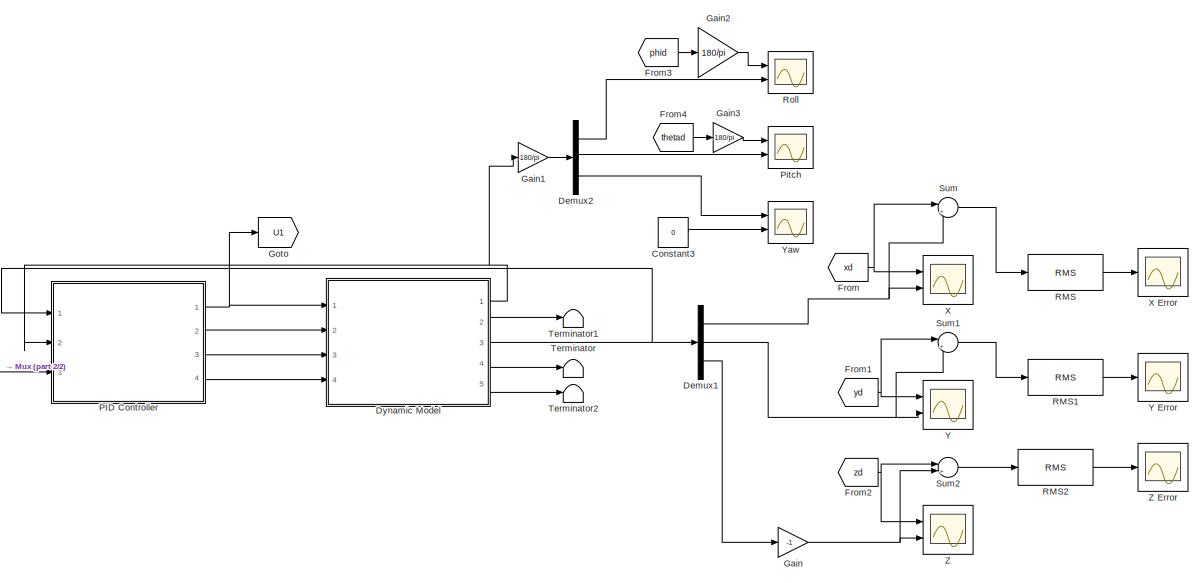
[diagram: root canvas - part 1/2, center side, full height]
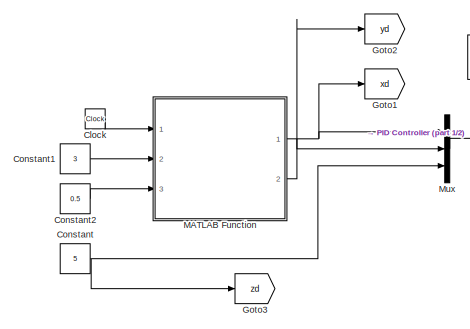
[diagram: root canvas - part 2/2, bottom left region]
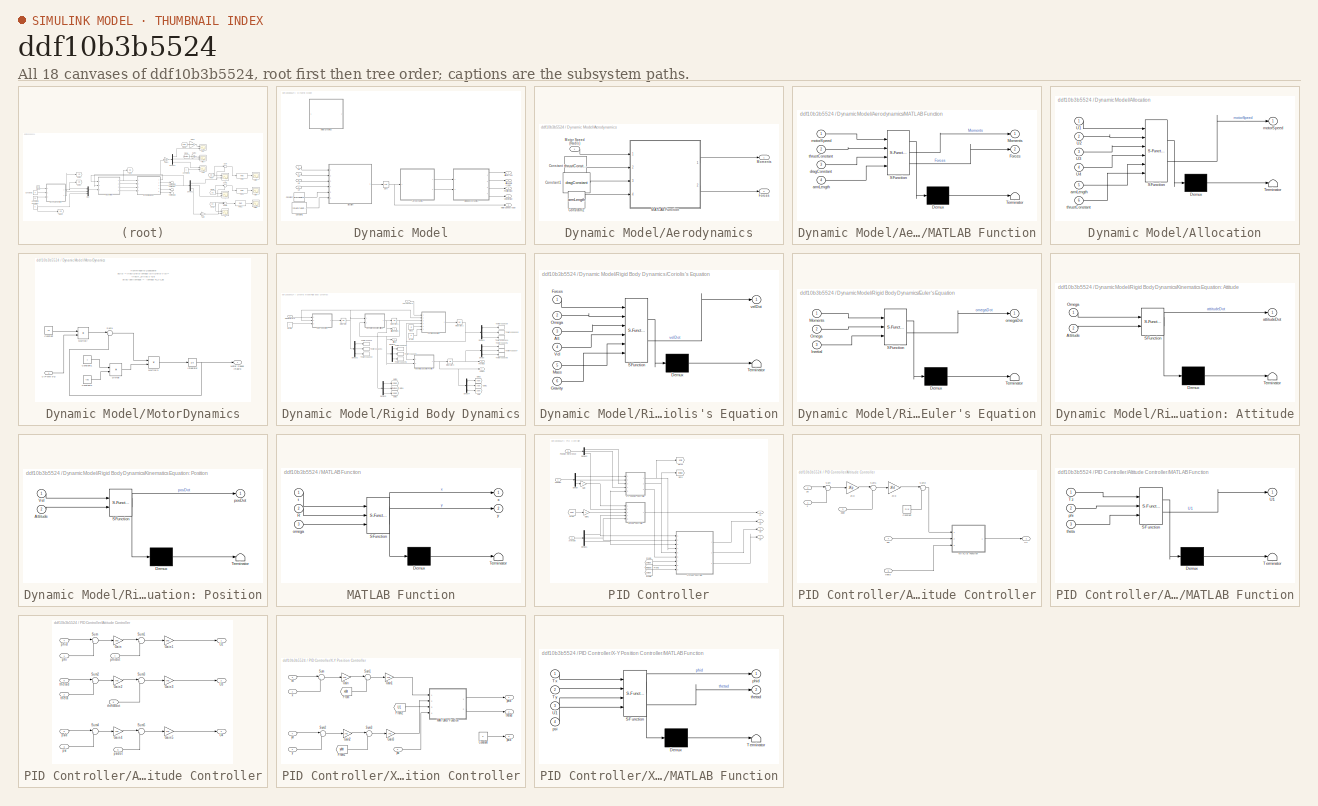
[diagram: thumbnail index - all 18 canvases of the model, root first then tree order]
MODEL slx_ddf10b3b5524
KIND model
CONFIG AbsTol = auto
CONFIG EnableMultiTasking = off
CONFIG FixedStep = auto
CONFIG MaxStep = auto
CONFIG MinStep = auto
CONFIG RelTol = 1e-3
CONFIG SampleTimeConstraint = Unconstrained
CONFIG SolverName = VariableStepAuto
CONFIG StartTime = 0.0
CONFIG StopTime = 20
BLOCK [Clock] Clock
BLOCK [Constant] Constant
  Value = 5
BLOCK [Constant] Constant1
  Value = 3
BLOCK [Constant] Constant2
  Value = 0.5
BLOCK [Constant] Constant3
  Value = 0
BLOCK [Demux] Demux1
  Outputs = 3
  Ports = [1, 3]
BLOCK [Demux] Demux2
  Outputs = 3
  Ports = [1, 3]
BLOCK [SubSystem] Dynamic Model
  Ports = [4, 5]
  RequestExecContextInheritance = off
BLOCK [SubSystem] Dynamic Model/Aerodynamics
  Ports = [1, 2]
  RequestExecContextInheritance = off
BLOCK [Constant] Dynamic Model/Aerodynamics/Constant
  Value = thrustConstant
BLOCK [Constant] Dynamic Model/Aerodynamics/Constant1
  Value = dragConstant
BLOCK [Constant] Dynamic Model/Aerodynamics/Constant2
  Value = armLength
BLOCK [Outport] Dynamic Model/Aerodynamics/Forces
  Port = 2
BLOCK [SubSystem] Dynamic Model/Aerodynamics/MATLAB Function
  ErrorFcn = Stateflow.Translate.translate
  PermitHierarchicalResolution = ExplicitOnly
  Ports = [4, 2]
  RequestExecContextInheritance = off
  SFBlockType = MATLAB Function
  TreatAsAtomicUnit = on
BLOCK [Demux] Dynamic Model/Aerodynamics/MATLAB Function/ Demux 
  Outputs = 1
  Ports = [1, 1]
BLOCK [S-Function] Dynamic Model/Aerodynamics/MATLAB Function/ SFunction 
  EnableBusSupport = on
  FunctionName = sf_sfun
  PortCounts = [4 3]
  Ports = [4, 3]
  SFcnIsStateOwnerBlock = off
  SFunctionDeploymentMode = off
  Tag = Stateflow S-Function 5
BLOCK [Terminator] Dynamic Model/Aerodynamics/MATLAB Function/ Terminator 
BLOCK [Outport] Dynamic Model/Aerodynamics/MATLAB Function/Forces
  Port = 2
BLOCK [Outport] Dynamic Model/Aerodynamics/MATLAB Function/Moments
BLOCK [Inport] Dynamic Model/Aerodynamics/MATLAB Function/armLength
  Port = 4
BLOCK [Inport] Dynamic Model/Aerodynamics/MATLAB Function/dragConstant
  Port = 3
BLOCK [Inport] Dynamic Model/Aerodynamics/MATLAB Function/motorSpeed
BLOCK [Inport] Dynamic Model/Aerodynamics/MATLAB Function/thrustConstant
  Port = 2
BLOCK [Outport] Dynamic Model/Aerodynamics/Moments
BLOCK [Inport] Dynamic Model/Aerodynamics/Motor Speed (Rad//s)
BLOCK [SubSystem] Dynamic Model/Allocation
  ErrorFcn = Stateflow.Translate.translate
  PermitHierarchicalResolution = ExplicitOnly
  Ports = [6, 1]
  RequestExecContextInheritance = off
  SFBlockType = MATLAB Function
  TreatAsAtomicUnit = on
BLOCK [Demux] Dynamic Model/Allocation/ Demux 
  Outputs = 1
  Ports = [1, 1]
BLOCK [S-Function] Dynamic Model/Allocation/ SFunction 
  EnableBusSupport = on
  FunctionName = sf_sfun
  PortCounts = [6 2]
  Ports = [6, 2]
  SFcnIsStateOwnerBlock = off
  SFunctionDeploymentMode = off
  Tag = Stateflow S-Function 13
BLOCK [Terminator] Dynamic Model/Allocation/ Terminator 
BLOCK [Inport] Dynamic Model/Allocation/U1
BLOCK [Inport] Dynamic Model/Allocation/U2
  Port = 2
BLOCK [Inport] Dynamic Model/Allocation/U3
  Port = 3
BLOCK [Inport] Dynamic Model/Allocation/U4
  Port = 4
BLOCK [Inport] Dynamic Model/Allocation/armLength
  Port = 5
BLOCK [Outport] Dynamic Model/Allocation/motorSpeed
BLOCK [Inport] Dynamic Model/Allocation/thrustConstant
  Port = 6
BLOCK [Outport] Dynamic Model/Attitude (rad)
BLOCK [Outport] Dynamic Model/Attitude Rate (rad//s)
  Port = 2
BLOCK [Constant] Dynamic Model/Constant
  Value = armLength
BLOCK [Constant] Dynamic Model/Constant1
  Value = thrustConstant
BLOCK [SubSystem] Dynamic Model/MotorDynamics
  Ports = [1, 1]
  RequestExecContextInheritance = off
BLOCK [Constant] Dynamic Model/MotorDynamics/Constant
  Value = ks
BLOCK [Constant] Dynamic Model/MotorDynamics/Constant1
BLOCK [Constant] Dynamic Model/MotorDynamics/Constant2
  Value = tau
BLOCK [Product] Dynamic Model/MotorDynamics/Divide
  Inputs = */
  Ports = [2, 1]
BLOCK [Integrator] Dynamic Model/MotorDynamics/Integrator
  InitialCondition = MotorSpeedInit
  Ports = [1, 1]
BLOCK [Outport] Dynamic Model/MotorDynamics/Motor Speed (Rad//s)
BLOCK [Product] Dynamic Model/MotorDynamics/Multiply
  Ports = [2, 1]
BLOCK [Product] Dynamic Model/MotorDynamics/Multiply1
  Ports = [2, 1]
BLOCK [Sum] Dynamic Model/MotorDynamics/Sum1
  Inputs = |+-
  Ports = [2, 1]
BLOCK [Inport] Dynamic Model/MotorDynamics/u (PWM 0~1)
BLOCK [Outport] Dynamic Model/MotorSpeed (rad//s)
  Port = 5
BLOCK [Outport] Dynamic Model/Position NED
  Port = 3
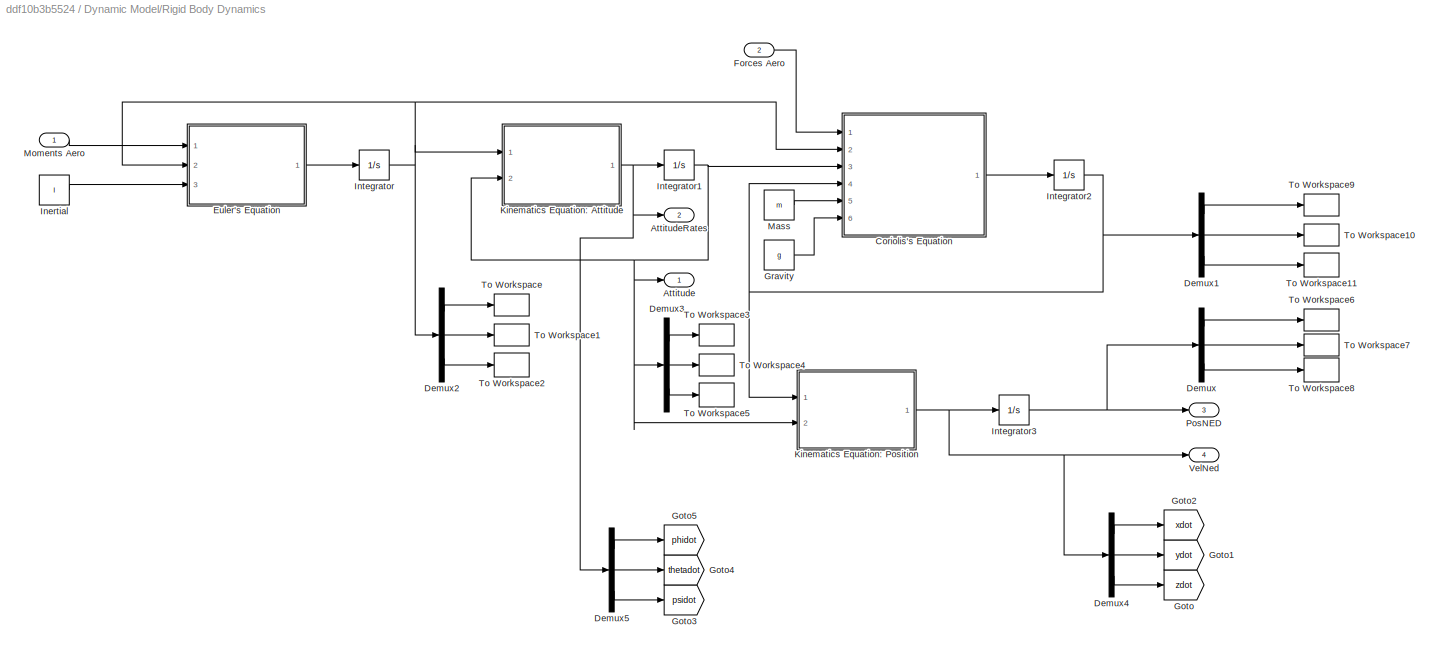
BLOCK [SubSystem] Dynamic Model/Rigid Body Dynamics
  Ports = [2, 4]
  RequestExecContextInheritance = off
BLOCK [Outport] Dynamic Model/Rigid Body Dynamics/Attitude
BLOCK [Outport] Dynamic Model/Rigid Body Dynamics/AttitudeRates
  Port = 2
BLOCK [SubSystem] Dynamic Model/Rigid Body Dynamics/Coriolis's Equation
  ErrorFcn = Stateflow.Translate.translate
  PermitHierarchicalResolution = ExplicitOnly
  Ports = [6, 1]
  RequestExecContextInheritance = off
  SFBlockType = MATLAB Function
  TreatAsAtomicUnit = on
BLOCK [Demux] Dynamic Model/Rigid Body Dynamics/Coriolis's Equation/ Demux 
  Outputs = 1
  Ports = [1, 1]
BLOCK [S-Function] Dynamic Model/Rigid Body Dynamics/Coriolis's Equation/ SFunction 
  EnableBusSupport = on
  FunctionName = sf_sfun
  PortCounts = [6 2]
  Ports = [6, 2]
  SFcnIsStateOwnerBlock = off
  SFunctionDeploymentMode = off
  Tag = Stateflow S-Function 3
BLOCK [Terminator] Dynamic Model/Rigid Body Dynamics/Coriolis's Equation/ Terminator 
BLOCK [Inport] Dynamic Model/Rigid Body Dynamics/Coriolis's Equation/Att
  Port = 3
BLOCK [Inport] Dynamic Model/Rigid Body Dynamics/Coriolis's Equation/Forces
BLOCK [Inport] Dynamic Model/Rigid Body Dynamics/Coriolis's Equation/Gravity
  Port = 6
BLOCK [Inport] Dynamic Model/Rigid Body Dynamics/Coriolis's Equation/Mass
  Port = 5
BLOCK [Inport] Dynamic Model/Rigid Body Dynamics/Coriolis's Equation/Omega
  Port = 2
BLOCK [Inport] Dynamic Model/Rigid Body Dynamics/Coriolis's Equation/Vel
  Port = 4
BLOCK [Outport] Dynamic Model/Rigid Body Dynamics/Coriolis's Equation/velDot
BLOCK [Demux] Dynamic Model/Rigid Body Dynamics/Demux
  Outputs = 3
  Ports = [1, 3]
BLOCK [Demux] Dynamic Model/Rigid Body Dynamics/Demux1
  Outputs = 3
  Ports = [1, 3]
BLOCK [Demux] Dynamic Model/Rigid Body Dynamics/Demux2
  Outputs = 3
  Ports = [1, 3]
BLOCK [Demux] Dynamic Model/Rigid Body Dynamics/Demux3
  Outputs = 3
  Ports = [1, 3]
BLOCK [Demux] Dynamic Model/Rigid Body Dynamics/Demux4
  Outputs = 3
  Ports = [1, 3]
BLOCK [Demux] Dynamic Model/Rigid Body Dynamics/Demux5
  Outputs = 3
  Ports = [1, 3]
BLOCK [SubSystem] Dynamic Model/Rigid Body Dynamics/Euler's Equation
  ErrorFcn = Stateflow.Translate.translate
  PermitHierarchicalResolution = ExplicitOnly
  Ports = [3, 1]
  RequestExecContextInheritance = off
  SFBlockType = MATLAB Function
  TreatAsAtomicUnit = on
BLOCK [Demux] Dynamic Model/Rigid Body Dynamics/Euler's Equation/ Demux 
  Outputs = 1
  Ports = [1, 1]
BLOCK [S-Function] Dynamic Model/Rigid Body Dynamics/Euler's Equation/ SFunction 
  EnableBusSupport = on
  FunctionName = sf_sfun
  PortCounts = [3 2]
  Ports = [3, 2]
  SFcnIsStateOwnerBlock = off
  SFunctionDeploymentMode = off
  Tag = Stateflow S-Function 2
BLOCK [Terminator] Dynamic Model/Rigid Body Dynamics/Euler's Equation/ Terminator 
BLOCK [Inport] Dynamic Model/Rigid Body Dynamics/Euler's Equation/Inertial
  Port = 3
BLOCK [Inport] Dynamic Model/Rigid Body Dynamics/Euler's Equation/Moments
BLOCK [Inport] Dynamic Model/Rigid Body Dynamics/Euler's Equation/Omega
  Port = 2
BLOCK [Outport] Dynamic Model/Rigid Body Dynamics/Euler's Equation/omegaDot
BLOCK [Inport] Dynamic Model/Rigid Body Dynamics/Forces Aero
  Port = 2
BLOCK [Goto] Dynamic Model/Rigid Body Dynamics/Goto
  GotoTag = zdot
  TagVisibility = global
BLOCK [Goto] Dynamic Model/Rigid Body Dynamics/Goto1
  GotoTag = ydot
  TagVisibility = global
BLOCK [Goto] Dynamic Model/Rigid Body Dynamics/Goto2
  GotoTag = xdot
  TagVisibility = global
BLOCK [Goto] Dynamic Model/Rigid Body Dynamics/Goto3
  GotoTag = psidot
  TagVisibility = global
BLOCK [Goto] Dynamic Model/Rigid Body Dynamics/Goto4
  GotoTag = thetadot
  TagVisibility = global
BLOCK [Goto] Dynamic Model/Rigid Body Dynamics/Goto5
  GotoTag = phidot
  TagVisibility = global
BLOCK [Constant] Dynamic Model/Rigid Body Dynamics/Gravity
  Value = g
BLOCK [Constant] Dynamic Model/Rigid Body Dynamics/Inertial
  Value = I
BLOCK [Integrator] Dynamic Model/Rigid Body Dynamics/Integrator
  InitialCondition = omegaInit
  Ports = [1, 1]
BLOCK [Integrator] Dynamic Model/Rigid Body Dynamics/Integrator1
  InitialCondition = attitudeInit
  Ports = [1, 1]
BLOCK [Integrator] Dynamic Model/Rigid Body Dynamics/Integrator2
  InitialCondition = velInit
  Ports = [1, 1]
BLOCK [Integrator] Dynamic Model/Rigid Body Dynamics/Integrator3
  InitialCondition = posInit
  Ports = [1, 1]
BLOCK [SubSystem] Dynamic Model/Rigid Body Dynamics/Kinematics Equation: Attitude
  ErrorFcn = Stateflow.Translate.translate
  PermitHierarchicalResolution = ExplicitOnly
  Ports = [2, 1]
  RequestExecContextInheritance = off
  SFBlockType = MATLAB Function
  TreatAsAtomicUnit = on
BLOCK [Demux] Dynamic Model/Rigid Body Dynamics/Kinematics Equation: Attitude/ Demux 
  Outputs = 1
  Ports = [1, 1]
BLOCK [S-Function] Dynamic Model/Rigid Body Dynamics/Kinematics Equation: Attitude/ SFunction 
  EnableBusSupport = on
  FunctionName = sf_sfun
  PortCounts = [2 2]
  Ports = [2, 2]
  SFcnIsStateOwnerBlock = off
  SFunctionDeploymentMode = off
  Tag = Stateflow S-Function 1
BLOCK [Terminator] Dynamic Model/Rigid Body Dynamics/Kinematics Equation: Attitude/ Terminator 
BLOCK [Inport] Dynamic Model/Rigid Body Dynamics/Kinematics Equation: Attitude/Attitude
  Port = 2
BLOCK [Inport] Dynamic Model/Rigid Body Dynamics/Kinematics Equation: Attitude/Omega
BLOCK [Outport] Dynamic Model/Rigid Body Dynamics/Kinematics Equation: Attitude/attitudeDot
BLOCK [SubSystem] Dynamic Model/Rigid Body Dynamics/Kinematics Equation: Position
  ErrorFcn = Stateflow.Translate.translate
  PermitHierarchicalResolution = ExplicitOnly
  Ports = [2, 1]
  RequestExecContextInheritance = off
  SFBlockType = MATLAB Function
  TreatAsAtomicUnit = on
BLOCK [Demux] Dynamic Model/Rigid Body Dynamics/Kinematics Equation: Position/ Demux 
  Outputs = 1
  Ports = [1, 1]
BLOCK [S-Function] Dynamic Model/Rigid Body Dynamics/Kinematics Equation: Position/ SFunction 
  EnableBusSupport = on
  FunctionName = sf_sfun
  PortCounts = [2 2]
  Ports = [2, 2]
  SFcnIsStateOwnerBlock = off
  SFunctionDeploymentMode = off
  Tag = Stateflow S-Function 4
BLOCK [Terminator] Dynamic Model/Rigid Body Dynamics/Kinematics Equation: Position/ Terminator 
BLOCK [Inport] Dynamic Model/Rigid Body Dynamics/Kinematics Equation: Position/Attitude
  Port = 2
BLOCK [Inport] Dynamic Model/Rigid Body Dynamics/Kinematics Equation: Position/Vel
BLOCK [Outport] Dynamic Model/Rigid Body Dynamics/Kinematics Equation: Position/posDot
BLOCK [Constant] Dynamic Model/Rigid Body Dynamics/Mass
  Value = m
BLOCK [Inport] Dynamic Model/Rigid Body Dynamics/Moments Aero
BLOCK [Outport] Dynamic Model/Rigid Body Dynamics/PosNED
  Port = 3
BLOCK [ToWorkspace] Dynamic Model/Rigid Body Dynamics/To Workspace
  MaxDataPoints = inf
  Ports = [1]
  SampleTime = -1
  Save2DSignal = 2-D array (concatenate along first dimension)
  VariableName = p
BLOCK [ToWorkspace] Dynamic Model/Rigid Body Dynamics/To Workspace1
  MaxDataPoints = inf
  Ports = [1]
  SampleTime = -1
  Save2DSignal = 2-D array (concatenate along first dimension)
  VariableName = q
BLOCK [ToWorkspace] Dynamic Model/Rigid Body Dynamics/To Workspace10
  MaxDataPoints = inf
  Ports = [1]
  SampleTime = -1
  Save2DSignal = 2-D array (concatenate along first dimension)
  VariableName = v
BLOCK [ToWorkspace] Dynamic Model/Rigid Body Dynamics/To Workspace11
  MaxDataPoints = inf
  Ports = [1]
  SampleTime = -1
  Save2DSignal = 2-D array (concatenate along first dimension)
  VariableName = w
BLOCK [ToWorkspace] Dynamic Model/Rigid Body Dynamics/To Workspace2
  MaxDataPoints = inf
  Ports = [1]
  SampleTime = -1
  Save2DSignal = 2-D array (concatenate along first dimension)
  VariableName = r
BLOCK [ToWorkspace] Dynamic Model/Rigid Body Dynamics/To Workspace3
  MaxDataPoints = inf
  Ports = [1]
  SampleTime = -1
  Save2DSignal = 2-D array (concatenate along first dimension)
  VariableName = roll
BLOCK [ToWorkspace] Dynamic Model/Rigid Body Dynamics/To Workspace4
  MaxDataPoints = inf
  Ports = [1]
  SampleTime = -1
  Save2DSignal = 2-D array (concatenate along first dimension)
  VariableName = pitch
BLOCK [ToWorkspace] Dynamic Model/Rigid Body Dynamics/To Workspace5
  MaxDataPoints = inf
  Ports = [1]
  SampleTime = -1
  Save2DSignal = 2-D array (concatenate along first dimension)
  VariableName = yaw
BLOCK [ToWorkspace] Dynamic Model/Rigid Body Dynamics/To Workspace6
  MaxDataPoints = inf
  Ports = [1]
  SampleTime = -1
  Save2DSignal = 2-D array (concatenate along first dimension)
  VariableName = x
BLOCK [ToWorkspace] Dynamic Model/Rigid Body Dynamics/To Workspace7
  MaxDataPoints = inf
  Ports = [1]
  SampleTime = -1
  Save2DSignal = 2-D array (concatenate along first dimension)
  VariableName = y
BLOCK [ToWorkspace] Dynamic Model/Rigid Body Dynamics/To Workspace8
  MaxDataPoints = inf
  Ports = [1]
  SampleTime = -1
  Save2DSignal = 2-D array (concatenate along first dimension)
  VariableName = z
BLOCK [ToWorkspace] Dynamic Model/Rigid Body Dynamics/To Workspace9
  MaxDataPoints = inf
  Ports = [1]
  SampleTime = -1
  Save2DSignal = 2-D array (concatenate along first dimension)
  VariableName = u
BLOCK [Outport] Dynamic Model/Rigid Body Dynamics/VelNed
  Port = 4
BLOCK [Sqrt] Dynamic Model/Sqrt
BLOCK [Inport] Dynamic Model/U1
BLOCK [Inport] Dynamic Model/U2
  Port = 2
BLOCK [Inport] Dynamic Model/U3
  Port = 3
BLOCK [Inport] Dynamic Model/U4
  Port = 4
BLOCK [Outport] Dynamic Model/Velocity NED
  Port = 4
BLOCK [From] From
  GotoTag = xd
BLOCK [From] From1
  GotoTag = yd
BLOCK [From] From2
  GotoTag = zd
BLOCK [From] From3
  GotoTag = phid
  TagVisibility = global
BLOCK [From] From4
  GotoTag = thetad
  TagVisibility = global
BLOCK [Gain] Gain
  Gain = -1
BLOCK [Gain] Gain1
  Gain = 180/pi
BLOCK [Gain] Gain2
  Gain = 180/pi
BLOCK [Gain] Gain3
  Gain = 180/pi
BLOCK [Goto] Goto
  GotoTag = U1
  TagVisibility = global
BLOCK [Goto] Goto1
  GotoTag = xd
BLOCK [Goto] Goto2
  GotoTag = yd
BLOCK [Goto] Goto3
  GotoTag = zd
BLOCK [SubSystem] MATLAB Function
  ErrorFcn = Stateflow.Translate.translate
  PermitHierarchicalResolution = ExplicitOnly
  Ports = [3, 2]
  RequestExecContextInheritance = off
  SFBlockType = MATLAB Function
  TreatAsAtomicUnit = on
BLOCK [Demux] MATLAB Function/ Demux 
  Outputs = 1
  Ports = [1, 1]
BLOCK [S-Function] MATLAB Function/ SFunction 
  EnableBusSupport = on
  FunctionName = sf_sfun
  PortCounts = [3 3]
  Ports = [3, 3]
  SFcnIsStateOwnerBlock = off
  SFunctionDeploymentMode = off
  Tag = Stateflow S-Function 11
BLOCK [Terminator] MATLAB Function/ Terminator 
BLOCK [Inport] MATLAB Function/R
  Port = 2
BLOCK [Inport] MATLAB Function/omega
  Port = 3
BLOCK [Inport] MATLAB Function/t
BLOCK [Outport] MATLAB Function/x
BLOCK [Outport] MATLAB Function/y
  Port = 2
BLOCK [Mux] Mux
  DisplayOption = bar
  Inputs = 3
  Ports = [3, 1]
BLOCK [SubSystem] PID Controller
  Ports = [3, 4]
  RequestExecContextInheritance = off
BLOCK [SubSystem] PID Controller/Altitude Controller
  Ports = [5, 1]
  RequestExecContextInheritance = off
BLOCK [Constant] PID Controller/Altitude Controller/Constant
  Value = m*g
BLOCK [SubSystem] PID Controller/Altitude Controller/MATLAB Function
  ErrorFcn = Stateflow.Translate.translate
  PermitHierarchicalResolution = ExplicitOnly
  Ports = [3, 1]
  RequestExecContextInheritance = off
  SFBlockType = MATLAB Function
  TreatAsAtomicUnit = on
BLOCK [Demux] PID Controller/Altitude Controller/MATLAB Function/ Demux 
  Outputs = 1
  Ports = [1, 1]
BLOCK [S-Function] PID Controller/Altitude Controller/MATLAB Function/ SFunction 
  EnableBusSupport = on
  FunctionName = sf_sfun
  PortCounts = [3 2]
  Ports = [3, 2]
  SFcnIsStateOwnerBlock = off
  SFunctionDeploymentMode = off
  Tag = Stateflow S-Function 12
BLOCK [Terminator] PID Controller/Altitude Controller/MATLAB Function/ Terminator 
BLOCK [Inport] PID Controller/Altitude Controller/MATLAB Function/Tz
BLOCK [Outport] PID Controller/Altitude Controller/MATLAB Function/U1
BLOCK [Inport] PID Controller/Altitude Controller/MATLAB Function/phi
  Port = 2
BLOCK [Inport] PID Controller/Altitude Controller/MATLAB Function/theta
  Port = 3
BLOCK [Sum] PID Controller/Altitude Controller/Sum
  Inputs = |+-
  Ports = [2, 1]
BLOCK [Sum] PID Controller/Altitude Controller/Sum1
  Inputs = |+-
  Ports = [2, 1]
BLOCK [Sum] PID Controller/Altitude Controller/Sum2
  Inputs = |++
  Ports = [2, 1]
BLOCK [Outport] PID Controller/Altitude Controller/U1
BLOCK [Inport] PID Controller/Altitude Controller/phi
  Port = 4
BLOCK [Inport] PID Controller/Altitude Controller/theta
  Port = 5
BLOCK [Inport] PID Controller/Altitude Controller/z
BLOCK [Gain] PID Controller/Altitude Controller/zKd
  Gain = zKd
BLOCK [Gain] PID Controller/Altitude Controller/zKp
  Gain = zKp
BLOCK [Inport] PID Controller/Altitude Controller/zd
  Port = 2
BLOCK [Inport] PID Controller/Altitude Controller/zdot
  Port = 3
BLOCK [Inport] PID Controller/Attitude
  Port = 2
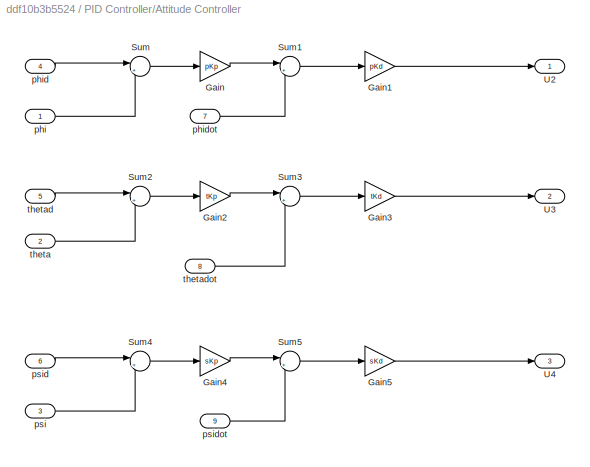
BLOCK [SubSystem] PID Controller/Attitude Controller
  Ports = [9, 3]
  RequestExecContextInheritance = off
BLOCK [Gain] PID Controller/Attitude Controller/Gain
  Gain = pKp
BLOCK [Gain] PID Controller/Attitude Controller/Gain1
  Gain = pKd
BLOCK [Gain] PID Controller/Attitude Controller/Gain2
  Gain = tKp
BLOCK [Gain] PID Controller/Attitude Controller/Gain3
  Gain = tKd
BLOCK [Gain] PID Controller/Attitude Controller/Gain4
  Gain = sKp
BLOCK [Gain] PID Controller/Attitude Controller/Gain5
  Gain = sKd
BLOCK [Sum] PID Controller/Attitude Controller/Sum
  Inputs = |+-
  Ports = [2, 1]
BLOCK [Sum] PID Controller/Attitude Controller/Sum1
  Inputs = |+-
  Ports = [2, 1]
BLOCK [Sum] PID Controller/Attitude Controller/Sum2
  Inputs = |+-
  Ports = [2, 1]
BLOCK [Sum] PID Controller/Attitude Controller/Sum3
  Inputs = |+-
  Ports = [2, 1]
BLOCK [Sum] PID Controller/Attitude Controller/Sum4
  Inputs = |+-
  Ports = [2, 1]
BLOCK [Sum] PID Controller/Attitude Controller/Sum5
  Inputs = |+-
  Ports = [2, 1]
BLOCK [Outport] PID Controller/Attitude Controller/U2
BLOCK [Outport] PID Controller/Attitude Controller/U3
  Port = 2
BLOCK [Outport] PID Controller/Attitude Controller/U4
  Port = 3
BLOCK [Inport] PID Controller/Attitude Controller/phi 
BLOCK [Inport] PID Controller/Attitude Controller/phid
  Port = 4
BLOCK [Inport] PID Controller/Attitude Controller/phidot
  Port = 7
BLOCK [Inport] PID Controller/Attitude Controller/psi
  Port = 3
BLOCK [Inport] PID Controller/Attitude Controller/psid
  Port = 6
BLOCK [Inport] PID Controller/Attitude Controller/psidot
  Port = 9
BLOCK [Inport] PID Controller/Attitude Controller/theta
  Port = 2
BLOCK [Inport] PID Controller/Attitude Controller/thetad
  Port = 5
BLOCK [Inport] PID Controller/Attitude Controller/thetadot
  Port = 8
BLOCK [Demux] PID Controller/Demux
  Outputs = 3
  Ports = [1, 3]
BLOCK [Demux] PID Controller/Demux1
  Outputs = 3
  Ports = [1, 3]
BLOCK [Demux] PID Controller/Demux2
  Outputs = 3
  Ports = [1, 3]
BLOCK [From] PID Controller/From
  GotoTag = zdot
  TagVisibility = global
BLOCK [From] PID Controller/From1
  GotoTag = phidot
  TagVisibility = global
BLOCK [From] PID Controller/From2
  GotoTag = thetadot
  TagVisibility = global
BLOCK [From] PID Controller/From3
  GotoTag = psidot
  TagVisibility = global
BLOCK [Gain] PID Controller/Gain
  Gain = -1
BLOCK [Gain] PID Controller/Gain1
  Gain = -1
BLOCK [Goto] PID Controller/Goto
  GotoTag = thetad
  TagVisibility = global
BLOCK [Goto] PID Controller/Goto1
  GotoTag = phid
  TagVisibility = global
BLOCK [Inport] PID Controller/Position
BLOCK [Inport] PID Controller/Position Reference
  Port = 3
BLOCK [Outport] PID Controller/U1
BLOCK [Outport] PID Controller/U2
  Port = 2
BLOCK [Outport] PID Controller/U3
  Port = 3
BLOCK [Outport] PID Controller/U4
  Port = 4
BLOCK [SubSystem] PID Controller/X-Y Position Controller
  Ports = [5, 3]
  RequestExecContextInheritance = off
BLOCK [Constant] PID Controller/X-Y Position Controller/Constant
  Value = 0
BLOCK [From] PID Controller/X-Y Position Controller/From
  GotoTag = xdot
  TagVisibility = global
BLOCK [From] PID Controller/X-Y Position Controller/From1
  GotoTag = ydot
  TagVisibility = global
BLOCK [From] PID Controller/X-Y Position Controller/From2
  GotoTag = U1
  TagVisibility = global
BLOCK [Gain] PID Controller/X-Y Position Controller/Gain
  Gain = xKp
BLOCK [Gain] PID Controller/X-Y Position Controller/Gain1
  Gain = xKd
BLOCK [Gain] PID Controller/X-Y Position Controller/Gain2
  Gain = yKp
BLOCK [Gain] PID Controller/X-Y Position Controller/Gain3
  Gain = yKd
BLOCK [SubSystem] PID Controller/X-Y Position Controller/MATLAB Function
  ErrorFcn = Stateflow.Translate.translate
  PermitHierarchicalResolution = ExplicitOnly
  Ports = [4, 2]
  RequestExecContextInheritance = off
  SFBlockType = MATLAB Function
  TreatAsAtomicUnit = on
BLOCK [Demux] PID Controller/X-Y Position Controller/MATLAB Function/ Demux 
  Outputs = 1
  Ports = [1, 1]
BLOCK [S-Function] PID Controller/X-Y Position Controller/MATLAB Function/ SFunction 
  EnableBusSupport = on
  FunctionName = sf_sfun
  PortCounts = [4 3]
  Ports = [4, 3]
  SFcnIsStateOwnerBlock = off
  SFunctionDeploymentMode = off
  Tag = Stateflow S-Function 14
BLOCK [Terminator] PID Controller/X-Y Position Controller/MATLAB Function/ Terminator 
BLOCK [Inport] PID Controller/X-Y Position Controller/MATLAB Function/Tx
BLOCK [Inport] PID Controller/X-Y Position Controller/MATLAB Function/Ty
  Port = 2
BLOCK [Inport] PID Controller/X-Y Position Controller/MATLAB Function/U1
  Port = 3
BLOCK [Outport] PID Controller/X-Y Position Controller/MATLAB Function/phid
BLOCK [Inport] PID Controller/X-Y Position Controller/MATLAB Function/psi
  Port = 4
BLOCK [Outport] PID Controller/X-Y Position Controller/MATLAB Function/thetad
  Port = 2
BLOCK [Sum] PID Controller/X-Y Position Controller/Sum
  Inputs = |+-
  Ports = [2, 1]
BLOCK [Sum] PID Controller/X-Y Position Controller/Sum1
  Inputs = |+-
  Ports = [2, 1]
BLOCK [Sum] PID Controller/X-Y Position Controller/Sum2
  Inputs = |+-
  Ports = [2, 1]
BLOCK [Sum] PID Controller/X-Y Position Controller/Sum3
  Inputs = |+-
  Ports = [2, 1]
BLOCK [Outport] PID Controller/X-Y Position Controller/phid
BLOCK [Inport] PID Controller/X-Y Position Controller/psi
  Port = 5
BLOCK [Outport] PID Controller/X-Y Position Controller/psid
  Port = 3
BLOCK [Outport] PID Controller/X-Y Position Controller/thetad
  Port = 2
BLOCK [Inport] PID Controller/X-Y Position Controller/x
BLOCK [Inport] PID Controller/X-Y Position Controller/xd
  Port = 3
BLOCK [Inport] PID Controller/X-Y Position Controller/y
  Port = 2
BLOCK [Inport] PID Controller/X-Y Position Controller/yd
  Port = 4
BLOCK [Scope] Pitch
  Floating = off
  NumInputPorts = 2
  Ports = [2]
  ScopeSpecificationString = Simulink.scopes.TimeScopeBlockCfg('CurrentConfiguration', extmgr.ConfigurationSet(extmgr.Configuration('Core','General UI',true),extmgr.Configuration('Core','Source UI',true),extmgr.Configuration('Sources','WiredSimulink',true,'DataLoggingVariableName','ScopeData7'),extmgr.Configuration('Visuals','Time Domain',true,'SerializedDisplays',{struct('MinYLimReal','-81.67412','MaxYLimReal','34.1947','YLa...<+1409ch>
BLOCK [Reference] RMS  REF=dspstat3/RMS
  Ports = [1, 1]
  SourceBlock = dspstat3/RMS
  SourceProductBaseCode = DS
  SourceType = RMS
  UserDataPersistent = on
BLOCK [Reference] RMS1  REF=dspstat3/RMS
  Ports = [1, 1]
  SourceBlock = dspstat3/RMS
  SourceProductBaseCode = DS
  SourceType = RMS
  UserDataPersistent = on
BLOCK [Reference] RMS2  REF=dspstat3/RMS
  Ports = [1, 1]
  SourceBlock = dspstat3/RMS
  SourceProductBaseCode = DS
  SourceType = RMS
  UserDataPersistent = on
BLOCK [Scope] Roll
  Floating = off
  NumInputPorts = 2
  Ports = [2]
  ScopeSpecificationString = Simulink.scopes.TimeScopeBlockCfg('CurrentConfiguration', extmgr.ConfigurationSet(extmgr.Configuration('Core','General UI',true),extmgr.Configuration('Core','Source UI',true),extmgr.Configuration('Sources','WiredSimulink',true,'DataLoggingVariableName','ScopeData8'),extmgr.Configuration('Visuals','Time Domain',true,'SerializedDisplays',{struct('MinYLimReal','-0.0000000000007','MaxYLimReal','0.0000...<+1469ch>
BLOCK [Sum] Sum
  Inputs = |+-
  Ports = [2, 1]
BLOCK [Sum] Sum1
  Inputs = |+-
  Ports = [2, 1]
BLOCK [Sum] Sum2
  Inputs = |+-
  Ports = [2, 1]
BLOCK [Terminator] Terminator
BLOCK [Terminator] Terminator1
BLOCK [Terminator] Terminator2
BLOCK [Scope] X
  Floating = off
  NumInputPorts = 2
  Ports = [2]
  ScopeSpecificationString = Simulink.scopes.TimeScopeBlockCfg('CurrentConfiguration', extmgr.ConfigurationSet(extmgr.Configuration('Core','General UI',true),extmgr.Configuration('Core','Source UI',true),extmgr.Configuration('Sources','WiredSimulink',true,'DataLoggingVariableName','ScopeData1'),extmgr.Configuration('Visuals','Time Domain',true,'SerializedDisplays',{struct('MinYLimReal','-0.39216','MaxYLimReal','3.52942','YLab...<+1403ch>
BLOCK [Scope] X Error
  Floating = off
  NumInputPorts = 1
  Ports = [1]
  ScopeSpecificationString = Simulink.scopes.TimeScopeBlockCfg('CurrentConfiguration', extmgr.ConfigurationSet(extmgr.Configuration('Core','General UI',true),extmgr.Configuration('Core','Source UI',true),extmgr.Configuration('Sources','WiredSimulink',true,'DataLoggingVariableName','ScopeData3'),extmgr.Configuration('Visuals','Time Domain',true,'SerializedDisplays',{struct('MinYLimReal','-0.375','MaxYLimReal','3.375','YLabelRe...<+1380ch>
BLOCK [Scope] Y
  Floating = off
  NumInputPorts = 2
  Ports = [2]
  ScopeSpecificationString = Simulink.scopes.TimeScopeBlockCfg('CurrentConfiguration', extmgr.ConfigurationSet(extmgr.Configuration('Core','General UI',true),extmgr.Configuration('Core','Source UI',true),extmgr.Configuration('Sources','WiredSimulink',true,'DataLoggingVariableName','ScopeData2'),extmgr.Configuration('Visuals','Time Domain',true,'SerializedDisplays',{struct('MinYLimReal','-0.0000000000000012','MaxYLimReal','0.0...<+1491ch>
BLOCK [Scope] Y Error
  Floating = off
  NumInputPorts = 1
  Ports = [1]
  ScopeSpecificationString = Simulink.scopes.TimeScopeBlockCfg('CurrentConfiguration', extmgr.ConfigurationSet(extmgr.Configuration('Core','General UI',true),extmgr.Configuration('Core','Source UI',true),extmgr.Configuration('Sources','WiredSimulink',true,'DataLoggingVariableName','ScopeData4'),extmgr.Configuration('Visuals','Time Domain',true,'SerializedDisplays',{struct('MinYLimReal','-0.0000000000000002','MaxYLimReal','0.0...<+1451ch>
BLOCK [Scope] Yaw
  Floating = off
  NumInputPorts = 2
  Ports = [2]
  ScopeSpecificationString = Simulink.scopes.TimeScopeBlockCfg('CurrentConfiguration', extmgr.ConfigurationSet(extmgr.Configuration('Core','General UI',true),extmgr.Configuration('Core','Source UI',true),extmgr.Configuration('Sources','WiredSimulink',true,'DataLoggingVariableName','ScopeData6'),extmgr.Configuration('Visuals','Time Domain',true,'SerializedDisplays',{struct('MinYLimReal','-0.00000000000027','MaxYLimReal','0.000...<+1481ch>
BLOCK [Scope] Z
  Floating = off
  NumInputPorts = 2
  Ports = [2]
  ScopeSpecificationString = Simulink.scopes.TimeScopeBlockCfg('CurrentConfiguration', extmgr.ConfigurationSet(extmgr.Configuration('Core','General UI',true),extmgr.Configuration('Core','Source UI',true),extmgr.Configuration('Sources','WiredSimulink',true),extmgr.Configuration('Visuals','Time Domain',true,'SerializedDisplays',{struct('MinYLimReal','-0.68426','MaxYLimReal','6.15838','YLabelReal','','MinYLimMag','0.00000','MaxY...<+1365ch>
BLOCK [Scope] Z Error
  Floating = off
  NumInputPorts = 1
  Ports = [1]
  ScopeSpecificationString = Simulink.scopes.TimeScopeBlockCfg('CurrentConfiguration', extmgr.ConfigurationSet(extmgr.Configuration('Core','General UI',true),extmgr.Configuration('Core','Source UI',true),extmgr.Configuration('Sources','WiredSimulink',true,'DataLoggingVariableName','ScopeData5'),extmgr.Configuration('Visuals','Time Domain',true,'SerializedDisplays',{struct('MinYLimReal','-0.625','MaxYLimReal','5.625','YLabelRe...<+1381ch>
ANNOTATION Dynamic Model/MotorDynamics: Hummingbird Quadcopter $G(s) = \frac{\Delta \omega (s)}{\Delta V(s)}= \frac{K_s}{\tau s +1}$ $\tau \dot{\omega} = - \omega +k_s v_a$
LINE Clock:1 -> MATLAB Function:1
LINE Constant1:1 -> MATLAB Function:2
LINE Constant2:1 -> MATLAB Function:3
LINE Constant3:1 -> Yaw:2
NET Constant:1 -> Goto3:1, Mux:3
NET Demux1:1 -> Sum:2, X:2
NET Demux1:2 -> Sum1:2, Y:2
LINE Demux1:3 -> Gain:1
LINE Demux2:1 -> Roll:2
LINE Demux2:2 -> Pitch:2
LINE Demux2:3 -> Yaw:1
LINE Dynamic Model/Aerodynamics/Constant1:1 -> Dynamic Model/Aerodynamics/MATLAB Function:3
LINE Dynamic Model/Aerodynamics/Constant2:1 -> Dynamic Model/Aerodynamics/MATLAB Function:4
LINE Dynamic Model/Aerodynamics/Constant:1 -> Dynamic Model/Aerodynamics/MATLAB Function:2
LINE Dynamic Model/Aerodynamics/MATLAB Function:1 -> Dynamic Model/Aerodynamics/Moments:1
LINE Dynamic Model/Aerodynamics/MATLAB Function:2 -> Dynamic Model/Aerodynamics/Forces:1
LINE Dynamic Model/Aerodynamics/Motor Speed (Rad//s):1 -> Dynamic Model/Aerodynamics/MATLAB Function:1
LINE Dynamic Model/Aerodynamics:1 -> Dynamic Model/Rigid Body Dynamics:1
LINE Dynamic Model/Aerodynamics:2 -> Dynamic Model/Rigid Body Dynamics:2
LINE Dynamic Model/Allocation:1 -> Dynamic Model/Sqrt:1
LINE Dynamic Model/Constant1:1 -> Dynamic Model/Allocation:6
LINE Dynamic Model/Constant:1 -> Dynamic Model/Allocation:5
LINE Dynamic Model/MotorDynamics/Constant1:1 -> Dynamic Model/MotorDynamics/Divide:1
LINE Dynamic Model/MotorDynamics/Constant2:1 -> Dynamic Model/MotorDynamics/Divide:2
LINE Dynamic Model/MotorDynamics/Constant:1 -> Dynamic Model/MotorDynamics/Multiply:1
LINE Dynamic Model/MotorDynamics/Divide:1 -> Dynamic Model/MotorDynamics/Multiply1:2
NET Dynamic Model/MotorDynamics/Integrator:1 -> Dynamic Model/MotorDynamics/Motor Speed (Rad//s):1, Dynamic Model/MotorDynamics/Sum1:2
LINE Dynamic Model/MotorDynamics/Multiply1:1 -> Dynamic Model/MotorDynamics/Integrator:1
LINE Dynamic Model/MotorDynamics/Multiply:1 -> Dynamic Model/MotorDynamics/Sum1:1
LINE Dynamic Model/MotorDynamics/Sum1:1 -> Dynamic Model/MotorDynamics/Multiply1:1
LINE Dynamic Model/MotorDynamics/u (PWM 0~1):1 -> Dynamic Model/MotorDynamics/Multiply:2
LINE Dynamic Model/Rigid Body Dynamics/Coriolis's Equation:1 -> Dynamic Model/Rigid Body Dynamics/Integrator2:1
LINE Dynamic Model/Rigid Body Dynamics/Demux1:1 -> Dynamic Model/Rigid Body Dynamics/To Workspace9:1
LINE Dynamic Model/Rigid Body Dynamics/Demux1:2 -> Dynamic Model/Rigid Body Dynamics/To Workspace10:1
LINE Dynamic Model/Rigid Body Dynamics/Demux1:3 -> Dynamic Model/Rigid Body Dynamics/To Workspace11:1
LINE Dynamic Model/Rigid Body Dynamics/Demux2:1 -> Dynamic Model/Rigid Body Dynamics/To Workspace:1
LINE Dynamic Model/Rigid Body Dynamics/Demux2:2 -> Dynamic Model/Rigid Body Dynamics/To Workspace1:1
LINE Dynamic Model/Rigid Body Dynamics/Demux2:3 -> Dynamic Model/Rigid Body Dynamics/To Workspace2:1
LINE Dynamic Model/Rigid Body Dynamics/Demux3:1 -> Dynamic Model/Rigid Body Dynamics/To Workspace3:1
LINE Dynamic Model/Rigid Body Dynamics/Demux3:2 -> Dynamic Model/Rigid Body Dynamics/To Workspace4:1
LINE Dynamic Model/Rigid Body Dynamics/Demux3:3 -> Dynamic Model/Rigid Body Dynamics/To Workspace5:1
LINE Dynamic Model/Rigid Body Dynamics/Demux4:1 -> Dynamic Model/Rigid Body Dynamics/Goto2:1
LINE Dynamic Model/Rigid Body Dynamics/Demux4:2 -> Dynamic Model/Rigid Body Dynamics/Goto1:1
LINE Dynamic Model/Rigid Body Dynamics/Demux4:3 -> Dynamic Model/Rigid Body Dynamics/Goto:1
LINE Dynamic Model/Rigid Body Dynamics/Demux5:1 -> Dynamic Model/Rigid Body Dynamics/Goto5:1
LINE Dynamic Model/Rigid Body Dynamics/Demux5:2 -> Dynamic Model/Rigid Body Dynamics/Goto4:1
LINE Dynamic Model/Rigid Body Dynamics/Demux5:3 -> Dynamic Model/Rigid Body Dynamics/Goto3:1
LINE Dynamic Model/Rigid Body Dynamics/Demux:1 -> Dynamic Model/Rigid Body Dynamics/To Workspace6:1
LINE Dynamic Model/Rigid Body Dynamics/Demux:2 -> Dynamic Model/Rigid Body Dynamics/To Workspace7:1
LINE Dynamic Model/Rigid Body Dynamics/Demux:3 -> Dynamic Model/Rigid Body Dynamics/To Workspace8:1
LINE Dynamic Model/Rigid Body Dynamics/Euler's Equation:1 -> Dynamic Model/Rigid Body Dynamics/Integrator:1
LINE Dynamic Model/Rigid Body Dynamics/Forces Aero:1 -> Dynamic Model/Rigid Body Dynamics/Coriolis's Equation:1
LINE Dynamic Model/Rigid Body Dynamics/Gravity:1 -> Dynamic Model/Rigid Body Dynamics/Coriolis's Equation:6
LINE Dynamic Model/Rigid Body Dynamics/Inertial:1 -> Dynamic Model/Rigid Body Dynamics/Euler's Equation:3
NET Dynamic Model/Rigid Body Dynamics/Integrator1:1 -> Dynamic Model/Rigid Body Dynamics/Attitude:1, Dynamic Model/Rigid Body Dynamics/Coriolis's Equation:3, Dynamic Model/Rigid Body Dynamics/Demux3:1, Dynamic Model/Rigid Body Dynamics/Kinematics Equation: Attitude:2, Dynamic Model/Rigid Body Dynamics/Kinematics Equation: Position:2
NET Dynamic Model/Rigid Body Dynamics/Integrator2:1 -> Dynamic Model/Rigid Body Dynamics/Coriolis's Equation:4, Dynamic Model/Rigid Body Dynamics/Demux1:1, Dynamic Model/Rigid Body Dynamics/Kinematics Equation: Position:1
NET Dynamic Model/Rigid Body Dynamics/Integrator3:1 -> Dynamic Model/Rigid Body Dynamics/Demux:1, Dynamic Model/Rigid Body Dynamics/PosNED:1
NET Dynamic Model/Rigid Body Dynamics/Integrator:1 -> Dynamic Model/Rigid Body Dynamics/Coriolis's Equation:2, Dynamic Model/Rigid Body Dynamics/Demux2:1, Dynamic Model/Rigid Body Dynamics/Euler's Equation:2, Dynamic Model/Rigid Body Dynamics/Kinematics Equation: Attitude:1
NET Dynamic Model/Rigid Body Dynamics/Kinematics Equation: Attitude:1 -> Dynamic Model/Rigid Body Dynamics/AttitudeRates:1, Dynamic Model/Rigid Body Dynamics/Demux5:1, Dynamic Model/Rigid Body Dynamics/Integrator1:1
NET Dynamic Model/Rigid Body Dynamics/Kinematics Equation: Position:1 -> Dynamic Model/Rigid Body Dynamics/Demux4:1, Dynamic Model/Rigid Body Dynamics/Integrator3:1, Dynamic Model/Rigid Body Dynamics/VelNed:1
LINE Dynamic Model/Rigid Body Dynamics/Mass:1 -> Dynamic Model/Rigid Body Dynamics/Coriolis's Equation:5
LINE Dynamic Model/Rigid Body Dynamics/Moments Aero:1 -> Dynamic Model/Rigid Body Dynamics/Euler's Equation:1
LINE Dynamic Model/Rigid Body Dynamics:1 -> Dynamic Model/Attitude (rad):1
LINE Dynamic Model/Rigid Body Dynamics:2 -> Dynamic Model/Attitude Rate (rad//s):1
LINE Dynamic Model/Rigid Body Dynamics:3 -> Dynamic Model/Position NED:1
LINE Dynamic Model/Rigid Body Dynamics:4 -> Dynamic Model/Velocity NED:1
NET Dynamic Model/Sqrt:1 -> Dynamic Model/Aerodynamics:1, Dynamic Model/MotorSpeed (rad//s):1
LINE Dynamic Model/U1:1 -> Dynamic Model/Allocation:1
LINE Dynamic Model/U2:1 -> Dynamic Model/Allocation:2
LINE Dynamic Model/U3:1 -> Dynamic Model/Allocation:3
LINE Dynamic Model/U4:1 -> Dynamic Model/Allocation:4
NET Dynamic Model:1 -> Gain1:1, PID Controller:2
LINE Dynamic Model:2 -> Terminator1:1
NET Dynamic Model:3 -> Demux1:1, PID Controller:1
LINE Dynamic Model:4 -> Terminator:1
LINE Dynamic Model:5 -> Terminator2:1
NET From1:1 -> Sum1:1, Y:1
NET From2:1 -> Sum2:1, Z:1
LINE From3:1 -> Gain2:1
LINE From4:1 -> Gain3:1
NET From:1 -> Sum:1, X:1
LINE Gain1:1 -> Demux2:1
LINE Gain2:1 -> Roll:1
LINE Gain3:1 -> Pitch:1
NET Gain:1 -> Sum2:2, Z:2
NET MATLAB Function:1 -> Goto1:1, Mux:1
NET MATLAB Function:2 -> Goto2:1, Mux:2
LINE Mux:1 -> PID Controller:3
LINE PID Controller/Altitude Controller/Constant:1 -> PID Controller/Altitude Controller/Sum2:2
LINE PID Controller/Altitude Controller/MATLAB Function:1 -> PID Controller/Altitude Controller/U1:1
LINE PID Controller/Altitude Controller/Sum1:1 -> PID Controller/Altitude Controller/zKd:1
LINE PID Controller/Altitude Controller/Sum2:1 -> PID Controller/Altitude Controller/MATLAB Function:1
LINE PID Controller/Altitude Controller/Sum:1 -> PID Controller/Altitude Controller/zKp:1
LINE PID Controller/Altitude Controller/phi:1 -> PID Controller/Altitude Controller/MATLAB Function:2
LINE PID Controller/Altitude Controller/theta:1 -> PID Controller/Altitude Controller/MATLAB Function:3
LINE PID Controller/Altitude Controller/z:1 -> PID Controller/Altitude Controller/Sum:2
LINE PID Controller/Altitude Controller/zKd:1 -> PID Controller/Altitude Controller/Sum2:1
LINE PID Controller/Altitude Controller/zKp:1 -> PID Controller/Altitude Controller/Sum1:1
LINE PID Controller/Altitude Controller/zd:1 -> PID Controller/Altitude Controller/Sum:1
LINE PID Controller/Altitude Controller/zdot:1 -> PID Controller/Altitude Controller/Sum1:2
LINE PID Controller/Altitude Controller:1 -> PID Controller/U1:1
LINE PID Controller/Attitude Controller/Gain1:1 -> PID Controller/Attitude Controller/U2:1
LINE PID Controller/Attitude Controller/Gain2:1 -> PID Controller/Attitude Controller/Sum3:1
LINE PID Controller/Attitude Controller/Gain3:1 -> PID Controller/Attitude Controller/U3:1
LINE PID Controller/Attitude Controller/Gain4:1 -> PID Controller/Attitude Controller/Sum5:1
LINE PID Controller/Attitude Controller/Gain5:1 -> PID Controller/Attitude Controller/U4:1
LINE PID Controller/Attitude Controller/Gain:1 -> PID Controller/Attitude Controller/Sum1:1
LINE PID Controller/Attitude Controller/Sum1:1 -> PID Controller/Attitude Controller/Gain1:1
LINE PID Controller/Attitude Controller/Sum2:1 -> PID Controller/Attitude Controller/Gain2:1
LINE PID Controller/Attitude Controller/Sum3:1 -> PID Controller/Attitude Controller/Gain3:1
LINE PID Controller/Attitude Controller/Sum4:1 -> PID Controller/Attitude Controller/Gain4:1
LINE PID Controller/Attitude Controller/Sum5:1 -> PID Controller/Attitude Controller/Gain5:1
LINE PID Controller/Attitude Controller/Sum:1 -> PID Controller/Attitude Controller/Gain:1
LINE PID Controller/Attitude Controller/phi :1 -> PID Controller/Attitude Controller/Sum:2
LINE PID Controller/Attitude Controller/phid:1 -> PID Controller/Attitude Controller/Sum:1
LINE PID Controller/Attitude Controller/phidot:1 -> PID Controller/Attitude Controller/Sum1:2
LINE PID Controller/Attitude Controller/psi:1 -> PID Controller/Attitude Controller/Sum4:2
LINE PID Controller/Attitude Controller/psid:1 -> PID Controller/Attitude Controller/Sum4:1
LINE PID Controller/Attitude Controller/psidot:1 -> PID Controller/Attitude Controller/Sum5:2
LINE PID Controller/Attitude Controller/theta:1 -> PID Controller/Attitude Controller/Sum2:2
LINE PID Controller/Attitude Controller/thetad:1 -> PID Controller/Attitude Controller/Sum2:1
LINE PID Controller/Attitude Controller/thetadot:1 -> PID Controller/Attitude Controller/Sum3:2
LINE PID Controller/Attitude Controller:1 -> PID Controller/U2:1
LINE PID Controller/Attitude Controller:2 -> PID Controller/U3:1
LINE PID Controller/Attitude Controller:3 -> PID Controller/U4:1
LINE PID Controller/Attitude:1 -> PID Controller/Demux1:1
NET PID Controller/Demux1:1 -> PID Controller/Altitude Controller:4, PID Controller/Attitude Controller:1
NET PID Controller/Demux1:2 -> PID Controller/Altitude Controller:5, PID Controller/Attitude Controller:2
NET PID Controller/Demux1:3 -> PID Controller/Attitude Controller:3, PID Controller/X-Y Position Controller:5
LINE PID Controller/Demux2:1 -> PID Controller/X-Y Position Controller:3
LINE PID Controller/Demux2:2 -> PID Controller/X-Y Position Controller:4
LINE PID Controller/Demux2:3 -> PID Controller/Altitude Controller:2
LINE PID Controller/Demux:1 -> PID Controller/X-Y Position Controller:1
LINE PID Controller/Demux:2 -> PID Controller/X-Y Position Controller:2
LINE PID Controller/Demux:3 -> PID Controller/Gain:1
LINE PID Controller/From1:1 -> PID Controller/Attitude Controller:7
LINE PID Controller/From2:1 -> PID Controller/Attitude Controller:8
LINE PID Controller/From3:1 -> PID Controller/Attitude Controller:9
LINE PID Controller/From:1 -> PID Controller/Gain1:1
LINE PID Controller/Gain1:1 -> PID Controller/Altitude Controller:3
LINE PID Controller/Gain:1 -> PID Controller/Altitude Controller:1
LINE PID Controller/Position Reference:1 -> PID Controller/Demux2:1
LINE PID Controller/Position:1 -> PID Controller/Demux:1
LINE PID Controller/X-Y Position Controller/Constant:1 -> PID Controller/X-Y Position Controller/psid:1
LINE PID Controller/X-Y Position Controller/From1:1 -> PID Controller/X-Y Position Controller/Sum3:2
LINE PID Controller/X-Y Position Controller/From2:1 -> PID Controller/X-Y Position Controller/MATLAB Function:3
LINE PID Controller/X-Y Position Controller/From:1 -> PID Controller/X-Y Position Controller/Sum1:2
LINE PID Controller/X-Y Position Controller/Gain1:1 -> PID Controller/X-Y Position Controller/MATLAB Function:1
LINE PID Controller/X-Y Position Controller/Gain2:1 -> PID Controller/X-Y Position Controller/Sum3:1
LINE PID Controller/X-Y Position Controller/Gain3:1 -> PID Controller/X-Y Position Controller/MATLAB Function:2
LINE PID Controller/X-Y Position Controller/Gain:1 -> PID Controller/X-Y Position Controller/Sum1:1
LINE PID Controller/X-Y Position Controller/MATLAB Function:1 -> PID Controller/X-Y Position Controller/phid:1
LINE PID Controller/X-Y Position Controller/MATLAB Function:2 -> PID Controller/X-Y Position Controller/thetad:1
LINE PID Controller/X-Y Position Controller/Sum1:1 -> PID Controller/X-Y Position Controller/Gain1:1
LINE PID Controller/X-Y Position Controller/Sum2:1 -> PID Controller/X-Y Position Controller/Gain2:1
LINE PID Controller/X-Y Position Controller/Sum3:1 -> PID Controller/X-Y Position Controller/Gain3:1
LINE PID Controller/X-Y Position Controller/Sum:1 -> PID Controller/X-Y Position Controller/Gain:1
LINE PID Controller/X-Y Position Controller/psi:1 -> PID Controller/X-Y Position Controller/MATLAB Function:4
LINE PID Controller/X-Y Position Controller/x:1 -> PID Controller/X-Y Position Controller/Sum:2
LINE PID Controller/X-Y Position Controller/xd:1 -> PID Controller/X-Y Position Controller/Sum:1
LINE PID Controller/X-Y Position Controller/y:1 -> PID Controller/X-Y Position Controller/Sum2:2
LINE PID Controller/X-Y Position Controller/yd:1 -> PID Controller/X-Y Position Controller/Sum2:1
NET PID Controller/X-Y Position Controller:1 -> PID Controller/Attitude Controller:4, PID Controller/Goto1:1
NET PID Controller/X-Y Position Controller:2 -> PID Controller/Attitude Controller:5, PID Controller/Goto:1
LINE PID Controller/X-Y Position Controller:3 -> PID Controller/Attitude Controller:6
NET PID Controller:1 -> Dynamic Model:1, Goto:1
LINE PID Controller:2 -> Dynamic Model:2
LINE PID Controller:3 -> Dynamic Model:3
LINE PID Controller:4 -> Dynamic Model:4
LINE RMS1:1 -> Y Error:1
LINE RMS2:1 -> Z Error:1
LINE RMS:1 -> X Error:1
LINE Sum1:1 -> RMS1:1
LINE Sum2:1 -> RMS2:1
LINE Sum:1 -> RMS:1
note: NET lines group one-source signal fan-out (src -> all destinations, sorted); 1:1 wires keep LINE
CHART Dynamic Model/Rigid Body Dynamics/Kinematics Equation: Attitude states=1 transitions=1
  STATE_LABEL 'eML_blk_kernel()'
  STATE_LABEL 'SCRIPT:\nfunction attitudeDot = fcn(Omega, Attitude)\n\n    p = Attitude(1);\n    t = Attitude(2);\n    \n    Jinv = [1, sin(p) * tan(t), cos(p) * tan(t);...\n               0,     cos(p)       ,     -sin(p);...\n               0, sin(p)/cos(t) , cos(p)/cos(t)];\n    \n    attitudeDot = Jinv * Omega;\n\nend'
CHART Dynamic Model/Rigid Body Dynamics/Euler's Equation states=1 transitions=1
  STATE_LABEL 'eML_blk_kernel()'
  STATE_LABEL 'SCRIPT:\nfunction omegaDot = fcn(Moments, Omega, Inertial)\n\n    omegaDot = Inertial^(-1) * (Moments - cross(Omega, Inertial * Omega));\n\nend'
CHART Dynamic Model/Rigid Body Dynamics/Coriolis's Equation states=1 transitions=1
  STATE_LABEL 'eML_blk_kernel()'
  STATE_LABEL 'SCRIPT:\nfunction velDot = fcn(Forces, Omega, Att, Vel, Mass, Gravity)\n    \n    p = Att(1);\n    t = Att(2);\n    \n    g = [-sin(t);...\n            sin(p) * cos(t);...\n            cos(p) * cos(t)] * Gravity;\n        \n    velDot = 1 / Mass * Forces + g - cross(Omega, Vel);\n\nend\n'
CHART Dynamic Model/Rigid Body Dynamics/Kinematics Equation: Position states=1 transitions=1
  STATE_LABEL 'eML_blk_kernel()'
  STATE_LABEL 'SCRIPT:\nfunction posDot = fcn(Vel, Attitude)\n\n    p = Attitude(1);\n    t = Attitude(2);\n    s = Attitude(3);\n\n    R = [cos(t) * cos(s), sin(p) * sin(t) * cos(s) - cos(p) * sin(s), cos(p) * sin(t) * cos(s) + sin(p) * sin(s); ...\n           cos(t) * sin(s), sin(p) * sin(t) * sin(s) + cos(p) * cos(s), cos(p) * sin(t) * sin(s) - sin(p) * cos(s);...\n           -sin(t), sin(p) * cos(t), cos(p) * cos(t)]...<+37ch>'
CHART Dynamic Model/Aerodynamics/MATLAB Function states=1 transitions=1
  STATE_LABEL 'eML_blk_kernel()'
  STATE_LABEL 'SCRIPT:\nfunction [Moments, Forces] = fcn(motorSpeed, thrustConstant, dragConstant, armLength)\n        \n        drag = dragConstant * motorSpeed.^2;\n        U1 = sum(thrustConstant * motorSpeed.^2);\n        \n        U2 = sqrt(2) / 2 * armLength * thrustConstant * (motorSpeed(3).^2 + motorSpeed(4).^2 - motorSpeed(1).^2 - motorSpeed(2).^2);\n        U3 = sqrt(2) / 2 * armLength * thrustConstant * (mot...<+209ch>'
CHART MATLAB Function states=1 transitions=1
  STATE_LABEL 'eML_blk_kernel()'
  STATE_LABEL 'SCRIPT:\nfunction [x,y] = fcn(t, R, omega)\n%     x = R * sin(omega * t);\n%     y = R * cos(omega * t);\n\n    if t < 10\n        x = 0;\n    else\n        x = 3;\n    end\n    y=0;\nend\n'
CHART PID Controller/Altitude Controller/MATLAB Function states=1 transitions=1
  STATE_LABEL 'eML_blk_kernel()'
  STATE_LABEL 'SCRIPT:\nfunction U1 = fcn(Tz, phi, theta)\n\n    U1 = Tz / (cos(phi) * cos(theta));\n\nend\n'
CHART Dynamic Model/Allocation states=1 transitions=1
  STATE_LABEL 'eML_blk_kernel()'
  STATE_LABEL 'SCRIPT:\nfunction motorSpeed = fcn(U1, U2, U3, U4, armLength, thrustConstant)\n\na = 1/(4 * thrustConstant);\nb = sqrt(2) / (4 * armLength * thrustConstant);\n\nmotorSpeed =  [a, -b, b, a; ...\n                         a, -b, -b, -a; ...\n                         a, b, -b, a; ...\n                         a, b, b, -a] * [U1; U2; U3; U4];\n\nend'
CHART PID Controller/X-Y Position Controller/MATLAB Function states=1 transitions=1
  STATE_LABEL 'eML_blk_kernel()'
  STATE_LABEL 'SCRIPT:\nfunction [phid, thetad] = fcn(Tx, Ty, U1, psi)\n\n    if U1 == 0\n        phid = 0;\n        thetad = 0;\n    else\n        phid = (-Tx * sin(psi) + Ty * cos(psi)) / U1;\n        thetad = -(Tx * cos(psi) + Ty * sin(psi)) / U1;\n    end\n    \nend\n'
CHART  states=0 transitions=0
CHART  states=0 transitions=0
CHART  states=0 transitions=0
CHART  states=0 transitions=0
CHART  states=0 transitions=0
CHART  states=0 transitions=0
CHART  states=0 transitions=0
CHART  states=0 transitions=0
CHART  states=0 transitions=0
